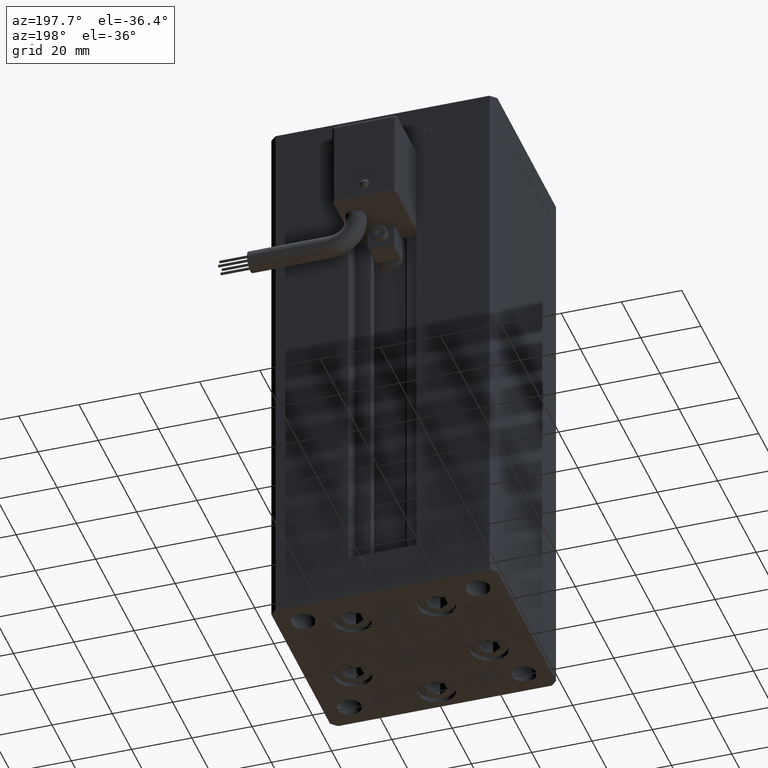
[diagram: clean part render]
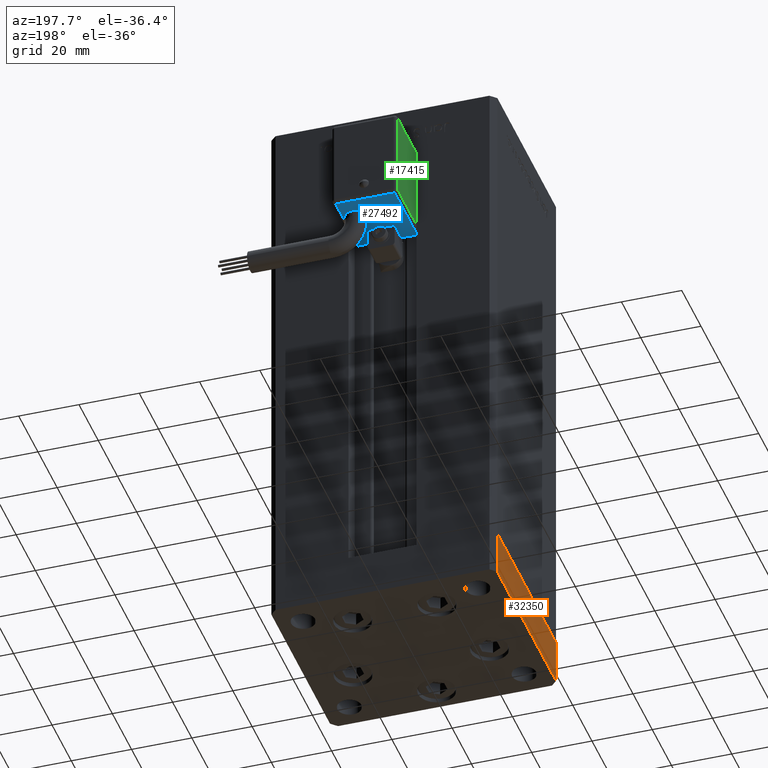
[diagram: same view with three faces highlighted in distinct colors, each labeled with its STEP entity id]
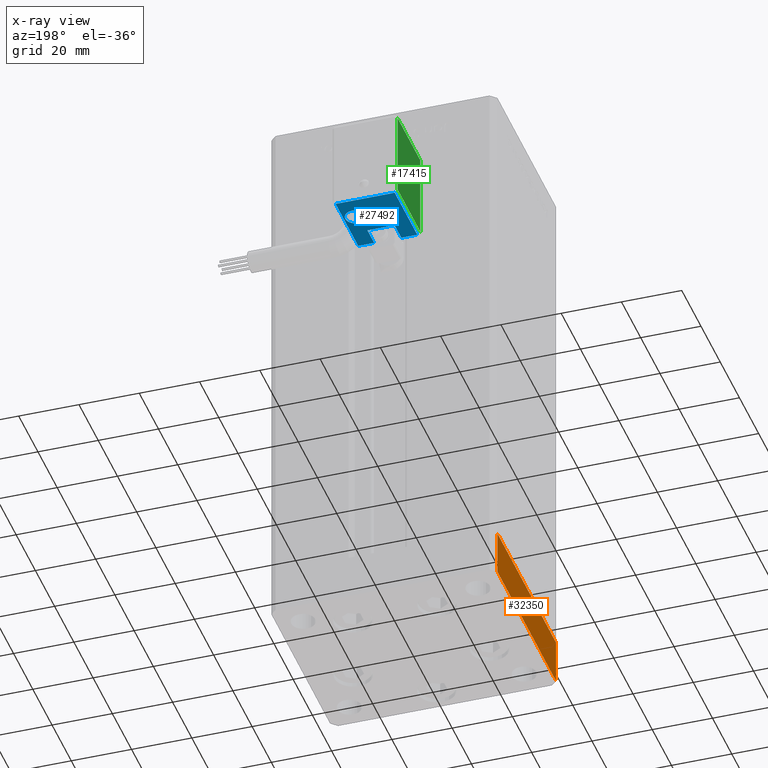
[diagram: x-ray of the same camera — body ghosted, the three highlighted faces saturated]
A machine part, auxiliary view with three faces highlighted in distinct colors.
The next image is the same camera in x-ray (body ghosted, the three faces saturated) — at least one of them is partly hidden behind the body in this view.
Their STEP definitions:

[orange] entity #32350 — the highlighted planar face has unit normal (-1, 0, 0).
#1508 = DIRECTION ( 'NONE',  ( 1.000000000000000000, 1.478780668045803018E-15, -0.000000000000000000 ) ) ;
#1987 = CARTESIAN_POINT ( 'NONE',  ( 37.49999999999992184, 30.50000000000001066, 0.000000000000000000 ) ) ;
#2901 = VERTEX_POINT ( 'NONE', #5791 ) ;
#3768 = VECTOR ( 'NONE', #31739, 1000.000000000000000 ) ;
#5499 = VECTOR ( 'NONE', #11306, 1000.000000000000000 ) ;
#5791 = CARTESIAN_POINT ( 'NONE',  ( 37.49999999999992184, 30.50000000000001066, -15.00000000000000000 ) ) ;
#9994 = CARTESIAN_POINT ( 'NONE',  ( 37.50000000000001421, -30.50000000000000711, -15.00000000000000000 ) ) ;
#11306 = DIRECTION ( 'NONE',  ( -1.478780668045802821E-15, 1.000000000000000000, 0.000000000000000000 ) ) ;
#12768 = CARTESIAN_POINT ( 'NONE',  ( 37.50000000000001421, -30.50000000000000711, 0.000000000000000000 ) ) ;
#14522 = CARTESIAN_POINT ( 'NONE',  ( 37.49999999999992184, 30.50000000000001066, -15.00000000000000000 ) ) ;
#14660 = EDGE_LOOP ( 'NONE', ( #23093, #38561, #38675, #16637 ) ) ;
#15752 = LINE ( 'NONE', #53718, #5499 ) ;
#16637 = ORIENTED_EDGE ( 'NONE', *, *, #34566, .T. ) ;
#18093 = VERTEX_POINT ( 'NONE', #47479 ) ;
#20643 = CARTESIAN_POINT ( 'NONE',  ( 37.50000000000001421, -30.50000000000000711, -15.00000000000000000 ) ) ;
#23093 = ORIENTED_EDGE ( 'NONE', *, *, #32038, .F. ) ;
#24276 = DIRECTION ( 'NONE',  ( -1.478780668045802821E-15, 1.000000000000000000, 0.000000000000000000 ) ) ;
#25652 = VERTEX_POINT ( 'NONE', #1987 ) ;
#25808 = EDGE_CURVE ( 'NONE', #18093, #2901, #28748, .T. ) ;
#26874 = PLANE ( 'NONE',  #28667 ) ;
#26984 = VECTOR ( 'NONE', #31554, 1000.000000000000000 ) ;
#28667 = AXIS2_PLACEMENT_3D ( 'NONE', #52543, #1508, #48365 ) ;
#28748 = LINE ( 'NONE', #20643, #50836 ) ;
#31554 = DIRECTION ( 'NONE',  ( 0.000000000000000000, 0.000000000000000000, 1.000000000000000000 ) ) ;
#31739 = DIRECTION ( 'NONE',  ( 0.000000000000000000, 0.000000000000000000, 1.000000000000000000 ) ) ;
#32038 = EDGE_CURVE ( 'NONE', #53599, #25652, #15752, .T. ) ;
#32350 = ADVANCED_FACE ( 'NONE', ( #52816 ), #26874, .T. ) ;
#34566 = EDGE_CURVE ( 'NONE', #2901, #25652, #44118, .T. ) ;
#38561 = ORIENTED_EDGE ( 'NONE', *, *, #47110, .F. ) ;
#38675 = ORIENTED_EDGE ( 'NONE', *, *, #25808, .T. ) ;
#43477 = LINE ( 'NONE', #9994, #3768 ) ;
#44118 = LINE ( 'NONE', #14522, #26984 ) ;
#47110 = EDGE_CURVE ( 'NONE', #18093, #53599, #43477, .T. ) ;
#47479 = CARTESIAN_POINT ( 'NONE',  ( 37.50000000000001421, -30.50000000000000711, -15.00000000000000000 ) ) ;
#48365 = DIRECTION ( 'NONE',  ( -1.478780668045803018E-15, 1.000000000000000000, 0.000000000000000000 ) ) ;
#50836 = VECTOR ( 'NONE', #24276, 1000.000000000000000 ) ;
#52543 = CARTESIAN_POINT ( 'NONE',  ( 37.50000000000001421, -30.50000000000000711, -15.00000000000000000 ) ) ;
#52816 = FACE_OUTER_BOUND ( 'NONE', #14660, .T. ) ;
#53599 = VERTEX_POINT ( 'NONE', #12768 ) ;
#53718 = CARTESIAN_POINT ( 'NONE',  ( 37.50000000000001421, -30.50000000000000711, 0.000000000000000000 ) ) ;

[blue] entity #27492 — the highlighted planar face has unit normal (0, -0, 1).
#184 = LINE ( 'NONE', #9660, #54744 ) ;
#1305 = CARTESIAN_POINT ( 'NONE',  ( -9.799999999999998934, 27.00000000000000000, -55.00000000000000000 ) ) ;
#2954 = CARTESIAN_POINT ( 'NONE',  ( -4.500000000000000000, 27.00000000000000000, -55.00000000000000000 ) ) ;
#4375 = DIRECTION ( 'NONE',  ( 1.000000000000000000, 0.000000000000000000, 2.220446049250000002E-16 ) ) ;
#4595 = CARTESIAN_POINT ( 'NONE',  ( 4.500000000000000000, 34.00000000000000000, -55.00000000000000000 ) ) ;
#4787 = DIRECTION ( 'NONE',  ( 1.000000000000000000, 2.220446049250000002E-16, 0.000000000000000000 ) ) ;
#5521 = CARTESIAN_POINT ( 'NONE',  ( 5.799999999999999822, 42.00000000000000000, -55.00000000000000000 ) ) ;
#5681 = DIRECTION ( 'NONE',  ( 2.220446049250000002E-16, 1.400000000000000069E-16, -1.000000000000000000 ) ) ;
#6066 = VECTOR ( 'NONE', #37555, 1000.000000000000000 ) ;
#6982 = EDGE_CURVE ( 'NONE', #7540, #32886, #18405, .T. ) ;
#7540 = VERTEX_POINT ( 'NONE', #23169 ) ;
#8792 = CARTESIAN_POINT ( 'NONE',  ( -4.500000000000000000, 34.00000000000000000, -55.00000000000000000 ) ) ;
#9169 = CARTESIAN_POINT ( 'NONE',  ( 10.80000000000000071, 27.00000000000000000, -55.00000000000000000 ) ) ;
#9269 = CARTESIAN_POINT ( 'NONE',  ( -9.799999999999998934, 50.50000000000000000, -55.00000000000000000 ) ) ;
#9660 = CARTESIAN_POINT ( 'NONE',  ( 10.80000000000000071, 50.50000000000000000, -55.00000000000000000 ) ) ;
#11294 = ORIENTED_EDGE ( 'NONE', *, *, #15536, .T. ) ;
#12332 = VECTOR ( 'NONE', #29686, 1000.000000000000000 ) ;
#12828 = CARTESIAN_POINT ( 'NONE',  ( 10.80000000000000071, 27.00000000000000000, -55.00000000000000000 ) ) ;
#12902 = EDGE_LOOP ( 'NONE', ( #29294, #51303 ) ) ;
#12944 = VECTOR ( 'NONE', #39015, 1000.000000000000000 ) ;
#13335 = LINE ( 'NONE', #9169, #12944 ) ;
#14308 = EDGE_CURVE ( 'NONE', #32886, #7540, #46047, .T. ) ;
#14571 = VECTOR ( 'NONE', #49352, 1000.000000000000000 ) ;
#14827 = AXIS2_PLACEMENT_3D ( 'NONE', #5521, #35369, #22511 ) ;
#15264 = EDGE_CURVE ( 'NONE', #32034, #36019, #29765, .T. ) ;
#15497 = VECTOR ( 'NONE', #35771, 1000.000000000000000 ) ;
#15536 = EDGE_CURVE ( 'NONE', #45007, #32059, #37823, .T. ) ;
#15857 = VERTEX_POINT ( 'NONE', #46943 ) ;
#16272 = ORIENTED_EDGE ( 'NONE', *, *, #38709, .T. ) ;
#18405 = CIRCLE ( 'NONE', #46057, 3.500000000000003109 ) ;
#18781 = ORIENTED_EDGE ( 'NONE', *, *, #15264, .T. ) ;
#19075 = EDGE_CURVE ( 'NONE', #39572, #28371, #34157, .T. ) ;
#19598 = ORIENTED_EDGE ( 'NONE', *, *, #48995, .T. ) ;
#21453 = ORIENTED_EDGE ( 'NONE', *, *, #37341, .T. ) ;
#22511 = DIRECTION ( 'NONE',  ( 0.000000000000000000, -1.000000000000000000, 0.000000000000000000 ) ) ;
#23169 = CARTESIAN_POINT ( 'NONE',  ( 5.799999999999999822, 38.50000000000000000, -55.00000000000000000 ) ) ;
#24773 = VECTOR ( 'NONE', #38161, 1000.000000000000000 ) ;
#25046 = CARTESIAN_POINT ( 'NONE',  ( -9.799999999999998934, 51.50000000000000000, -55.00000000000000000 ) ) ;
#25967 = PLANE ( 'NONE',  #32208 ) ;
#26495 = LINE ( 'NONE', #12828, #34978 ) ;
#27492 = ADVANCED_FACE ( 'NONE', ( #47194, #30990 ), #25967, .F. ) ;
#27930 = LINE ( 'NONE', #36602, #15497 ) ;
#28371 = VERTEX_POINT ( 'NONE', #46585 ) ;
#29049 = ORIENTED_EDGE ( 'NONE', *, *, #42053, .T. ) ;
#29294 = ORIENTED_EDGE ( 'NONE', *, *, #6982, .F. ) ;
#29686 = DIRECTION ( 'NONE',  ( 2.664535259099999699E-32, -1.000000000000000000, -1.200000000000000024E-16 ) ) ;
#29765 = LINE ( 'NONE', #25046, #24773 ) ;
#29851 = DIRECTION ( 'NONE',  ( -1.000000000000000000, 0.000000000000000000, -2.220446049250000002E-16 ) ) ;
#30057 = VERTEX_POINT ( 'NONE', #42313 ) ;
#30990 = FACE_BOUND ( 'NONE', #12902, .T. ) ;
#32034 = VERTEX_POINT ( 'NONE', #1305 ) ;
#32059 = VERTEX_POINT ( 'NONE', #2954 ) ;
#32208 = AXIS2_PLACEMENT_3D ( 'NONE', #48024, #52470, #4787 ) ;
#32333 = LINE ( 'NONE', #32898, #14571 ) ;
#32886 = VERTEX_POINT ( 'NONE', #45763 ) ;
#32898 = CARTESIAN_POINT ( 'NONE',  ( 4.500000000000000000, 34.00000000000000000, -55.00000000000000000 ) ) ;
#34157 = LINE ( 'NONE', #4595, #12332 ) ;
#34977 = DIRECTION ( 'NONE',  ( 0.000000000000000000, -1.000000000000000000, 0.000000000000000000 ) ) ;
#34978 = VECTOR ( 'NONE', #29851, 1000.000000000000000 ) ;
#35369 = DIRECTION ( 'NONE',  ( 2.220446049250000002E-16, 1.400000000000000069E-16, -1.000000000000000000 ) ) ;
#35771 = DIRECTION ( 'NONE',  ( 3.108624468950000014E-32, -1.000000000000000000, -1.400000000000000069E-16 ) ) ;
#36019 = VERTEX_POINT ( 'NONE', #9269 ) ;
#36602 = CARTESIAN_POINT ( 'NONE',  ( 9.799999999999998934, 26.00000000000000000, -55.00000000000000000 ) ) ;
#37341 = EDGE_CURVE ( 'NONE', #39572, #45007, #32333, .T. ) ;
#37555 = DIRECTION ( 'NONE',  ( 2.664535259099999699E-32, -1.000000000000000000, -1.200000000000000024E-16 ) ) ;
#37823 = LINE ( 'NONE', #8792, #6066 ) ;
#38161 = DIRECTION ( 'NONE',  ( -3.108624468950000014E-32, 1.000000000000000000, 1.400000000000000069E-16 ) ) ;
#38709 = EDGE_CURVE ( 'NONE', #30057, #15857, #27930, .T. ) ;
#39015 = DIRECTION ( 'NONE',  ( -1.000000000000000000, 0.000000000000000000, -2.220446049250000002E-16 ) ) ;
#39572 = VERTEX_POINT ( 'NONE', #50531 ) ;
#39711 = CARTESIAN_POINT ( 'NONE',  ( 5.799999999999999822, 42.00000000000000000, -55.00000000000000000 ) ) ;
#40128 = EDGE_CURVE ( 'NONE', #36019, #30057, #184, .T. ) ;
#42053 = EDGE_CURVE ( 'NONE', #15857, #28371, #13335, .T. ) ;
#42313 = CARTESIAN_POINT ( 'NONE',  ( 9.799999999999998934, 50.50000000000000000, -55.00000000000000000 ) ) ;
#44628 = CARTESIAN_POINT ( 'NONE',  ( -4.500000000000000000, 34.00000000000000000, -55.00000000000000000 ) ) ;
#45007 = VERTEX_POINT ( 'NONE', #44628 ) ;
#45763 = CARTESIAN_POINT ( 'NONE',  ( 5.799999999999999822, 45.50000000000000711, -55.00000000000000000 ) ) ;
#46047 = CIRCLE ( 'NONE', #14827, 3.500000000000003109 ) ;
#46057 = AXIS2_PLACEMENT_3D ( 'NONE', #39711, #5681, #34977 ) ;
#46585 = CARTESIAN_POINT ( 'NONE',  ( 4.500000000000000000, 27.00000000000000000, -55.00000000000000000 ) ) ;
#46943 = CARTESIAN_POINT ( 'NONE',  ( 9.799999999999998934, 27.00000000000000000, -55.00000000000000000 ) ) ;
#47194 = FACE_OUTER_BOUND ( 'NONE', #49398, .T. ) ;
#48024 = CARTESIAN_POINT ( 'NONE',  ( 10.80000000000000071, 51.50000000000000000, -55.00000000000000000 ) ) ;
#48995 = EDGE_CURVE ( 'NONE', #32059, #32034, #26495, .T. ) ;
#49352 = DIRECTION ( 'NONE',  ( -1.000000000000000000, 0.000000000000000000, -2.220446049250000002E-16 ) ) ;
#49398 = EDGE_LOOP ( 'NONE', ( #11294, #19598, #18781, #50599, #16272, #29049, #50533, #21453 ) ) ;
#50531 = CARTESIAN_POINT ( 'NONE',  ( 4.500000000000000000, 34.00000000000000000, -55.00000000000000000 ) ) ;
#50533 = ORIENTED_EDGE ( 'NONE', *, *, #19075, .F. ) ;
#50599 = ORIENTED_EDGE ( 'NONE', *, *, #40128, .T. ) ;
#51303 = ORIENTED_EDGE ( 'NONE', *, *, #14308, .F. ) ;
#52470 = DIRECTION ( 'NONE',  ( 3.108624468950000014E-32, -1.400000000000000069E-16, 1.000000000000000000 ) ) ;
#54744 = VECTOR ( 'NONE', #4375, 1000.000000000000000 ) ;

[green] entity #17415 — the highlighted planar face has unit normal (1, 0, 0).
#256 = ORIENTED_EDGE ( 'NONE', *, *, #51046, .T. ) ;
#257 = EDGE_CURVE ( 'NONE', #41848, #44076, #826, .T. ) ;
#685 = CARTESIAN_POINT ( 'NONE',  ( -10.80000000000000071, 50.50000000000000000, -55.00000000000000000 ) ) ;
#826 = LINE ( 'NONE', #1107, #4103 ) ;
#1002 = CARTESIAN_POINT ( 'NONE',  ( -10.80000000000000071, 27.00000000000000000, -55.00000000000000000 ) ) ;
#1107 = CARTESIAN_POINT ( 'NONE',  ( -10.80000000000000071, 26.00000000000000000, -26.00000000000000000 ) ) ;
#4103 = VECTOR ( 'NONE', #12801, 1000.000000000000000 ) ;
#5460 = VECTOR ( 'NONE', #25633, 1000.000000000000000 ) ;
#6026 = AXIS2_PLACEMENT_3D ( 'NONE', #25612, #30071, #26424 ) ;
#10341 = ORIENTED_EDGE ( 'NONE', *, *, #257, .T. ) ;
#12801 = DIRECTION ( 'NONE',  ( -3.108624468950000014E-32, 1.000000000000000000, 1.400000000000000069E-16 ) ) ;
#13043 = PLANE ( 'NONE',  #6026 ) ;
#13337 = LINE ( 'NONE', #26168, #5460 ) ;
#14646 = VERTEX_POINT ( 'NONE', #28846 ) ;
#17415 = ADVANCED_FACE ( 'NONE', ( #48200 ), #13043, .F. ) ;
#22735 = DIRECTION ( 'NONE',  ( -2.220446049250000002E-16, -1.200000000000000024E-16, 1.000000000000000000 ) ) ;
#25612 = CARTESIAN_POINT ( 'NONE',  ( -10.80000000000000071, 26.00000000000000000, -55.00000000000000000 ) ) ;
#25632 = ORIENTED_EDGE ( 'NONE', *, *, #30657, .T. ) ;
#25633 = DIRECTION ( 'NONE',  ( 3.108624468950000014E-32, -1.000000000000000000, -1.400000000000000069E-16 ) ) ;
#26168 = CARTESIAN_POINT ( 'NONE',  ( -10.80000000000000071, 26.00000000000000000, -54.00000000000000000 ) ) ;
#26424 = DIRECTION ( 'NONE',  ( 0.000000000000000000, -2.220446049250000002E-16, 1.000000000000000000 ) ) ;
#28846 = CARTESIAN_POINT ( 'NONE',  ( -10.80000000000000071, 50.50000000000000000, -54.00000000000000000 ) ) ;
#29272 = EDGE_LOOP ( 'NONE', ( #10341, #256, #25632, #34329 ) ) ;
#30071 = DIRECTION ( 'NONE',  ( 1.000000000000000000, 4.930380657629929601E-32, 1.094764425253299406E-47 ) ) ;
#30657 = EDGE_CURVE ( 'NONE', #14646, #34970, #13337, .T. ) ;
#32225 = VECTOR ( 'NONE', #22735, 1000.000000000000000 ) ;
#33266 = VECTOR ( 'NONE', #46720, 1000.000000000000000 ) ;
#33365 = CARTESIAN_POINT ( 'NONE',  ( -10.80000000000000071, 27.00000000000000000, -54.00000000000000000 ) ) ;
#34043 = CARTESIAN_POINT ( 'NONE',  ( -10.80000000000000071, 50.50000000000000000, -26.00000000000000000 ) ) ;
#34329 = ORIENTED_EDGE ( 'NONE', *, *, #46670, .T. ) ;
#34970 = VERTEX_POINT ( 'NONE', #33365 ) ;
#38078 = LINE ( 'NONE', #685, #33266 ) ;
#41848 = VERTEX_POINT ( 'NONE', #45190 ) ;
#44076 = VERTEX_POINT ( 'NONE', #34043 ) ;
#45190 = CARTESIAN_POINT ( 'NONE',  ( -10.80000000000000071, 27.00000000000000000, -26.00000000000000000 ) ) ;
#46670 = EDGE_CURVE ( 'NONE', #34970, #41848, #48145, .T. ) ;
#46720 = DIRECTION ( 'NONE',  ( 2.220446049250000002E-16, 1.200000000000000024E-16, -1.000000000000000000 ) ) ;
#48145 = LINE ( 'NONE', #1002, #32225 ) ;
#48200 = FACE_OUTER_BOUND ( 'NONE', #29272, .T. ) ;
#51046 = EDGE_CURVE ( 'NONE', #44076, #14646, #38078, .T. ) ;